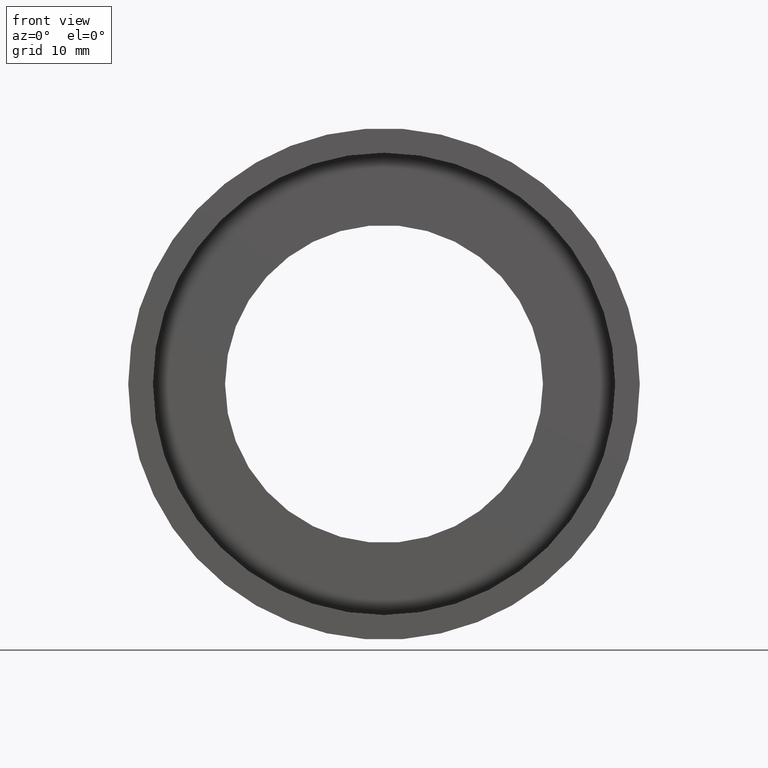
[diagram: clean part render]
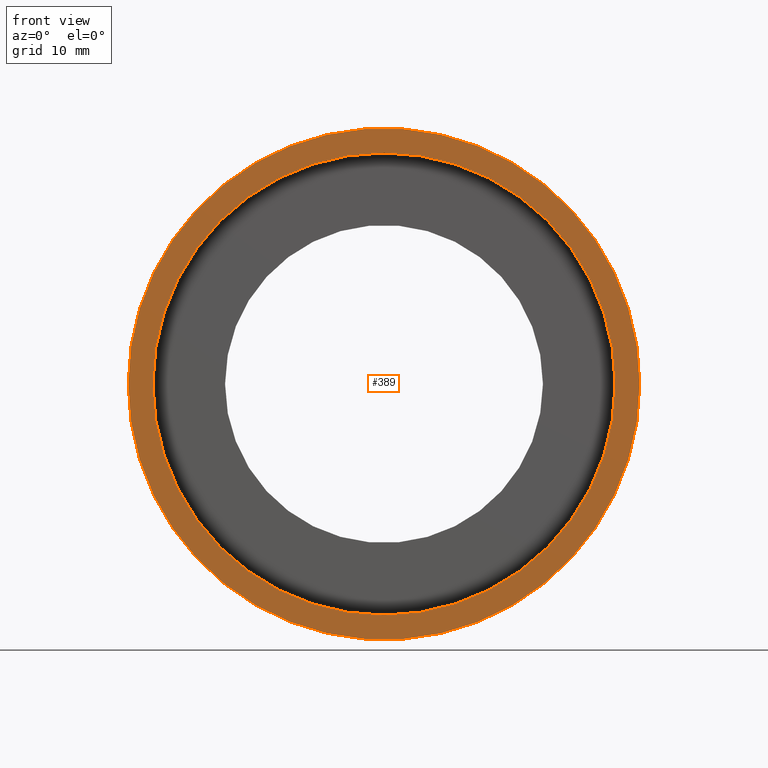
[diagram: same view with one face highlighted and labeled with its STEP entity id]
A machine part, front view. The second image highlights one B-rep face of the part: STEP entity #389.
In plain terms, the highlighted planar face has unit normal (-0, 1, 0).
Its self-contained STEP definition (entity closure, byte-faithful):
#37 = EDGE_LOOP ( 'NONE', ( #284, #55 ) ) ;
#49 = DIRECTION ( 'NONE',  ( -1.224646799147351000E-016, 1.000000000000000000, -0.0000000000000000000 ) ) ;
#55 = ORIENTED_EDGE ( 'NONE', *, *, #236, .F. ) ;
#70 = CIRCLE ( 'NONE', #243, 27.99999999999999600 ) ;
#80 = FACE_OUTER_BOUND ( 'NONE', #37, .T. ) ;
#110 = AXIS2_PLACEMENT_3D ( 'NONE', #541, #268, #126 ) ;
#111 = CARTESIAN_POINT ( 'NONE',  ( -25.29999999999999700, -6.567803353796412200E-015, 0.0000000000000000000 ) ) ;
#112 = DIRECTION ( 'NONE',  ( -1.000000000000000000, -1.224646799147351000E-016, 0.0000000000000000000 ) ) ;
#126 = DIRECTION ( 'NONE',  ( -1.000000000000000000, -1.224646799147351000E-016, 0.0000000000000000000 ) ) ;
#140 = VERTEX_POINT ( 'NONE', #615 ) ;
#167 = AXIS2_PLACEMENT_3D ( 'NONE', #297, #485, #325 ) ;
#207 = DIRECTION ( 'NONE',  ( -1.000000000000000000, -1.224646799147351000E-016, 0.0000000000000000000 ) ) ;
#218 = VERTEX_POINT ( 'NONE', #598 ) ;
#221 = AXIS2_PLACEMENT_3D ( 'NONE', #486, #309, #112 ) ;
#228 = ORIENTED_EDGE ( 'NONE', *, *, #604, .T. ) ;
#236 = EDGE_CURVE ( 'NONE', #140, #218, #70, .T. ) ;
#240 = AXIS2_PLACEMENT_3D ( 'NONE', #385, #438, #207 ) ;
#241 = FACE_BOUND ( 'NONE', #581, .T. ) ;
#243 = AXIS2_PLACEMENT_3D ( 'NONE', #481, #49, #261 ) ;
#251 = ORIENTED_EDGE ( 'NONE', *, *, #577, .T. ) ;
#261 = DIRECTION ( 'NONE',  ( -1.000000000000000000, -1.224646799147351200E-016, 0.0000000000000000000 ) ) ;
#268 = DIRECTION ( 'NONE',  ( -1.224646799147351000E-016, 1.000000000000000000, 0.0000000000000000000 ) ) ;
#272 = CIRCLE ( 'NONE', #167, 27.99999999999999600 ) ;
#279 = CIRCLE ( 'NONE', #240, 25.30000000000000100 ) ;
#283 = CIRCLE ( 'NONE', #221, 25.30000000000000100 ) ;
#284 = ORIENTED_EDGE ( 'NONE', *, *, #504, .F. ) ;
#297 = CARTESIAN_POINT ( 'NONE',  ( 2.067940818438636500E-015, -3.469446951953614200E-015, 0.0000000000000000000 ) ) ;
#309 = DIRECTION ( 'NONE',  ( -1.224646799147351000E-016, 1.000000000000000000, -0.0000000000000000000 ) ) ;
#325 = DIRECTION ( 'NONE',  ( -1.000000000000000000, -1.224646799147351200E-016, 0.0000000000000000000 ) ) ;
#385 = CARTESIAN_POINT ( 'NONE',  ( 2.067940818438636500E-015, -3.469446951953614200E-015, 0.0000000000000000000 ) ) ;
#389 = ADVANCED_FACE ( 'NONE', ( #80, #241 ), #495, .F. ) ;
#438 = DIRECTION ( 'NONE',  ( -1.224646799147351000E-016, 1.000000000000000000, -0.0000000000000000000 ) ) ;
#477 = CARTESIAN_POINT ( 'NONE',  ( 25.30000000000000400, -3.710905501108162000E-016, 3.098356401842804300E-015 ) ) ;
#481 = CARTESIAN_POINT ( 'NONE',  ( 2.067940818438636500E-015, -3.469446951953614200E-015, 0.0000000000000000000 ) ) ;
#484 = VERTEX_POINT ( 'NONE', #111 ) ;
#485 = DIRECTION ( 'NONE',  ( -1.224646799147351000E-016, 1.000000000000000000, -0.0000000000000000000 ) ) ;
#486 = CARTESIAN_POINT ( 'NONE',  ( 2.067940818438636500E-015, -3.469446951953614200E-015, 0.0000000000000000000 ) ) ;
#495 = PLANE ( 'NONE',  #110 ) ;
#504 = EDGE_CURVE ( 'NONE', #218, #140, #272, .T. ) ;
#514 = VERTEX_POINT ( 'NONE', #477 ) ;
#541 = CARTESIAN_POINT ( 'NONE',  ( 28.00000000000000000, -9.629649721936179300E-032, 0.0000000000000000000 ) ) ;
#577 = EDGE_CURVE ( 'NONE', #514, #484, #283, .T. ) ;
#581 = EDGE_LOOP ( 'NONE', ( #228, #251 ) ) ;
#598 = CARTESIAN_POINT ( 'NONE',  ( -27.99999999999999300, -6.898457989566196800E-015, 0.0000000000000000000 ) ) ;
#604 = EDGE_CURVE ( 'NONE', #484, #514, #279, .T. ) ;
#615 = CARTESIAN_POINT ( 'NONE',  ( 28.00000000000000400, -4.043591434103126100E-017, 3.429011037612589700E-015 ) ) ;